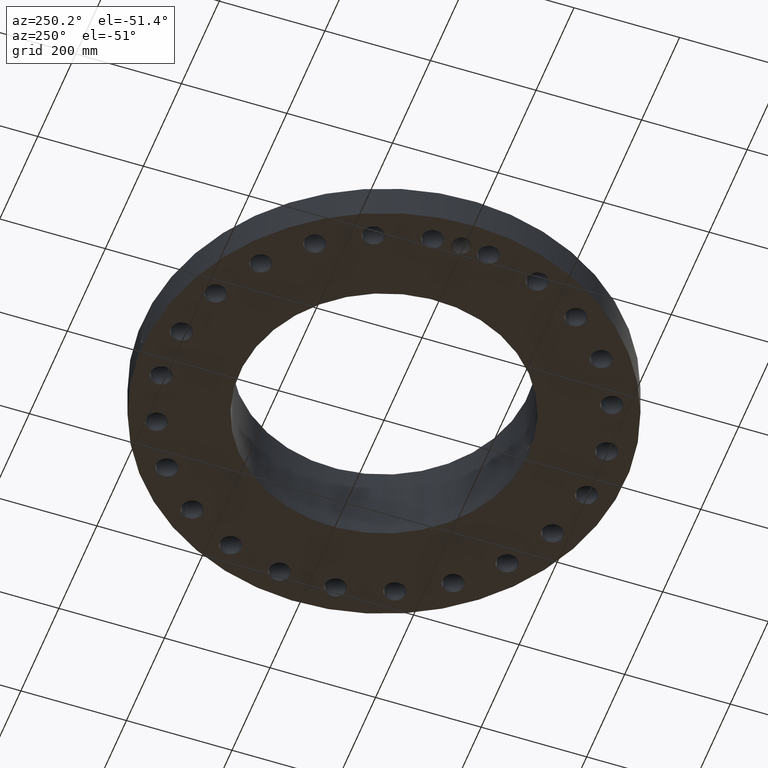
[diagram: clean part render]
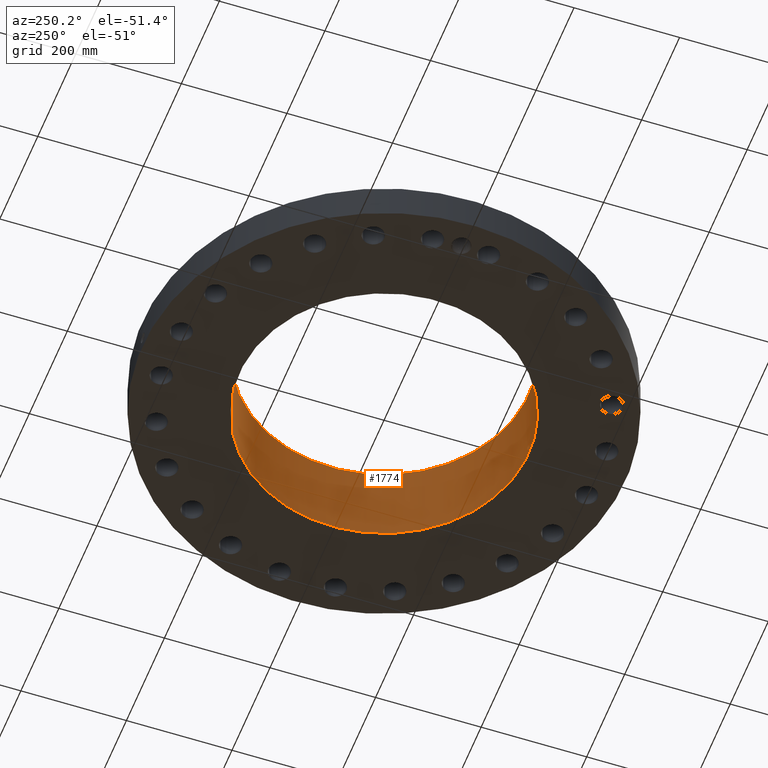
[diagram: same view with one face highlighted and labeled with its STEP entity id]
A machine part, auxiliary view. The second image highlights one B-rep face of the part: STEP entity #1774.
In plain terms, the highlighted cylindrical surface (partial cylindrical patch) has radius 273.837 mm, axis along (0, 0, -1).
Its self-contained STEP definition (entity closure, byte-faithful):
#253=AXIS2_PLACEMENT_3D('Circle Axis2P3D',#251,#252,$) ;
#1705=AXIS2_PLACEMENT_3D('Cylinder Axis2P3D',#1702,#1703,#1704) ;
#1709=AXIS2_PLACEMENT_3D('Circle Axis2P3D',#1707,#1708,$) ;
#251=CARTESIAN_POINT('Axis2P3D Location',(0.,0.,0.0600000000002)) ;
#255=CARTESIAN_POINT('Vertex',(5.16868673171,9.46121759978,0.0600000000002)) ;
#257=CARTESIAN_POINT('Vertex',(-5.16868673171,-9.46121759978,0.0600000000002)) ;
#1702=CARTESIAN_POINT('Axis2P3D Location',(0.,0.,3.37000000001)) ;
#1707=CARTESIAN_POINT('Axis2P3D Location',(0.,0.,6.68000000003)) ;
#1711=CARTESIAN_POINT('Vertex',(5.16868673171,9.46121759978,6.68000000003)) ;
#1713=CARTESIAN_POINT('Vertex',(-5.16868673171,-9.46121759978,6.68000000003)) ;
#1716=CARTESIAN_POINT('Line Origine',(5.16868673171,9.46121759978,3.37000000001)) ;
#1721=CARTESIAN_POINT('Line Origine',(-5.16868673171,-9.46121759978,3.37000000001)) ;
#1733=CARTESIAN_POINT('Control Point',(0.219395640473,-10.7787673949,0.820143615352)) ;
#1734=CARTESIAN_POINT('Control Point',(0.194442770626,-10.7792752963,0.774467693474)) ;
#1735=CARTESIAN_POINT('Control Point',(0.157604157844,-10.7799528878,0.735286955394)) ;
#1736=CARTESIAN_POINT('Control Point',(0.111105136821,-10.7806119043,0.706755706306)) ;
#1737=CARTESIAN_POINT('Control Point',(0.0336693197781,-10.7811362237,0.68411682999)) ;
#1738=CARTESIAN_POINT('Control Point',(-0.0446758183253,-10.7809550036,0.691944277409)) ;
#1739=CARTESIAN_POINT('Control Point',(-0.070306915904,-10.7808143238,0.697957743575)) ;
#1740=CARTESIAN_POINT('Control Point',(-0.14396471239,-10.7801926827,0.725792839383)) ;
#1741=CARTESIAN_POINT('Control Point',(-0.203253392438,-10.7791780658,0.78051302856)) ;
#1742=CARTESIAN_POINT('Control Point',(-0.232216721991,-10.7785126908,0.826756188327)) ;
#1743=CARTESIAN_POINT('Control Point',(-0.255841712233,-10.7779658439,0.904901362992)) ;
#1744=CARTESIAN_POINT('Control Point',(-0.248280648446,-10.7781407167,0.984262038351)) ;
#1745=CARTESIAN_POINT('Control Point',(-0.242046922577,-10.7782869792,1.01082111307)) ;
#1746=CARTESIAN_POINT('Control Point',(-0.23231416403,-10.7785044458,1.0362091859)) ;
#1747=CARTESIAN_POINT('Control Point',(-0.219395640473,-10.7787673949,1.05985638466)) ;
#1748=CARTESIAN_POINT('Vertex',(0.219395640473,-10.7787673949,0.820143615352)) ;
#1750=CARTESIAN_POINT('Vertex',(-0.219395640473,-10.7787673949,1.05985638466)) ;
#1754=CARTESIAN_POINT('Control Point',(-0.219395640473,-10.7787673949,1.05985638466)) ;
#1755=CARTESIAN_POINT('Control Point',(-0.194442770619,-10.7792752963,1.10553230654)) ;
#1756=CARTESIAN_POINT('Control Point',(-0.157604157826,-10.7799528878,1.14471304463)) ;
#1757=CARTESIAN_POINT('Control Point',(-0.111105136853,-10.7806119043,1.17324429369)) ;
#1758=CARTESIAN_POINT('Control Point',(-0.0336693197986,-10.7811362237,1.19588317002)) ;
#1759=CARTESIAN_POINT('Control Point',(0.0446758183168,-10.7809550036,1.1880557226)) ;
#1760=CARTESIAN_POINT('Control Point',(0.0703069158993,-10.7808143238,1.18204225643)) ;
#1761=CARTESIAN_POINT('Control Point',(0.14396471245,-10.7801926827,1.1542071606)) ;
#1762=CARTESIAN_POINT('Control Point',(0.203253392536,-10.7791780658,1.09948697136)) ;
#1763=CARTESIAN_POINT('Control Point',(0.232216721948,-10.7785126908,1.05324381182)) ;
#1764=CARTESIAN_POINT('Control Point',(0.255841712225,-10.7779658439,0.975098637133)) ;
#1765=CARTESIAN_POINT('Control Point',(0.248280648456,-10.7781407167,0.89573796175)) ;
#1766=CARTESIAN_POINT('Control Point',(0.242046922546,-10.7782869792,0.869178886851)) ;
#1767=CARTESIAN_POINT('Control Point',(0.232314164009,-10.7785044458,0.843790814068)) ;
#1768=CARTESIAN_POINT('Control Point',(0.219395640473,-10.7787673949,0.820143615352)) ;
#252=DIRECTION('Axis2P3D Direction',(0.,0.,-0.0393700787402)) ;
#1703=DIRECTION('Axis2P3D Direction',(0.,0.,-0.0393700787402)) ;
#1704=DIRECTION('Axis2P3D XDirection',(-0.0188750212049,-0.0345504945626,0.)) ;
#1708=DIRECTION('Axis2P3D Direction',(0.,0.,-0.0393700787402)) ;
#1717=DIRECTION('Vector Direction',(0.,0.,-0.0393700787402)) ;
#1722=DIRECTION('Vector Direction',(0.,0.,-0.0393700787402)) ;
#1718=VECTOR('Line Direction',#1717,0.0393700787402) ;
#1723=VECTOR('Line Direction',#1722,0.0393700787402) ;
#1727=ORIENTED_EDGE('',*,*,#1715,.F.) ;
#1728=ORIENTED_EDGE('',*,*,#1720,.T.) ;
#1729=ORIENTED_EDGE('',*,*,#259,.T.) ;
#1730=ORIENTED_EDGE('',*,*,#1725,.F.) ;
#1771=ORIENTED_EDGE('',*,*,#1752,.F.) ;
#1772=ORIENTED_EDGE('',*,*,#1769,.F.) ;
#1773=FACE_BOUND('',#1770,.T.) ;
#1774=ADVANCED_FACE('PartBody',(#1731,#1773),#1706,.F.) ;
#1732=B_SPLINE_CURVE_WITH_KNOTS('',5,(#1733,#1734,#1735,#1736,#1737,#1738,#1739,#1740,#1741,#1742,#1743,#1744,#1745,#1746,#1747),.UNSPECIFIED.,.F.,.U.,(6,3,3,3,6),(0.,9.34843112331,14.0229867633,23.3730319053,28.2128731107),.UNSPECIFIED.) ;
#1753=B_SPLINE_CURVE_WITH_KNOTS('',5,(#1754,#1755,#1756,#1757,#1758,#1759,#1760,#1761,#1762,#1763,#1764,#1765,#1766,#1767,#1768),.UNSPECIFIED.,.F.,.U.,(6,3,3,3,6),(0.,9.34843112563,14.0229867655,23.3730319196,28.2128731173),.UNSPECIFIED.) ;
#254=CIRCLE('generated circle',#253,10.781) ;
#1710=CIRCLE('generated circle',#1709,10.781) ;
#1706=CYLINDRICAL_SURFACE('generated cylinder',#1705,10.781) ;
#259=EDGE_CURVE('',#256,#258,#254,.T.) ;
#1715=EDGE_CURVE('',#1712,#1714,#1710,.T.) ;
#1720=EDGE_CURVE('',#1712,#256,#1719,.T.) ;
#1725=EDGE_CURVE('',#1714,#258,#1724,.T.) ;
#1752=EDGE_CURVE('',#1749,#1751,#1732,.T.) ;
#1769=EDGE_CURVE('',#1751,#1749,#1753,.T.) ;
#1726=EDGE_LOOP('',(#1727,#1728,#1729,#1730)) ;
#1770=EDGE_LOOP('',(#1771,#1772)) ;
#1731=FACE_OUTER_BOUND('',#1726,.T.) ;
#1719=LINE('Line',#1716,#1718) ;
#1724=LINE('Line',#1721,#1723) ;
#256=VERTEX_POINT('',#255) ;
#258=VERTEX_POINT('',#257) ;
#1712=VERTEX_POINT('',#1711) ;
#1714=VERTEX_POINT('',#1713) ;
#1749=VERTEX_POINT('',#1748) ;
#1751=VERTEX_POINT('',#1750) ;